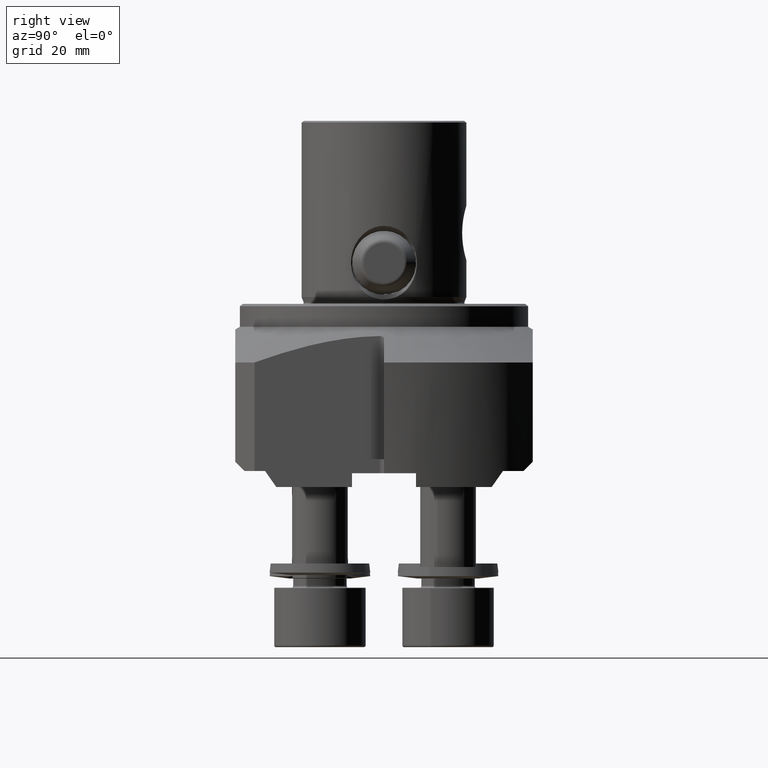
[diagram: clean part render]
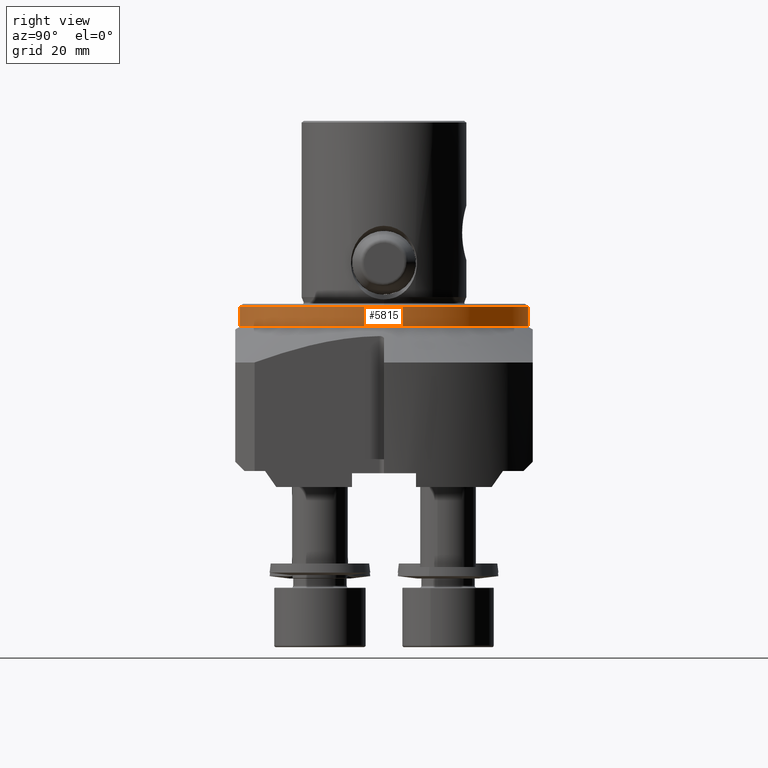
[diagram: same view with one face highlighted and labeled with its STEP entity id]
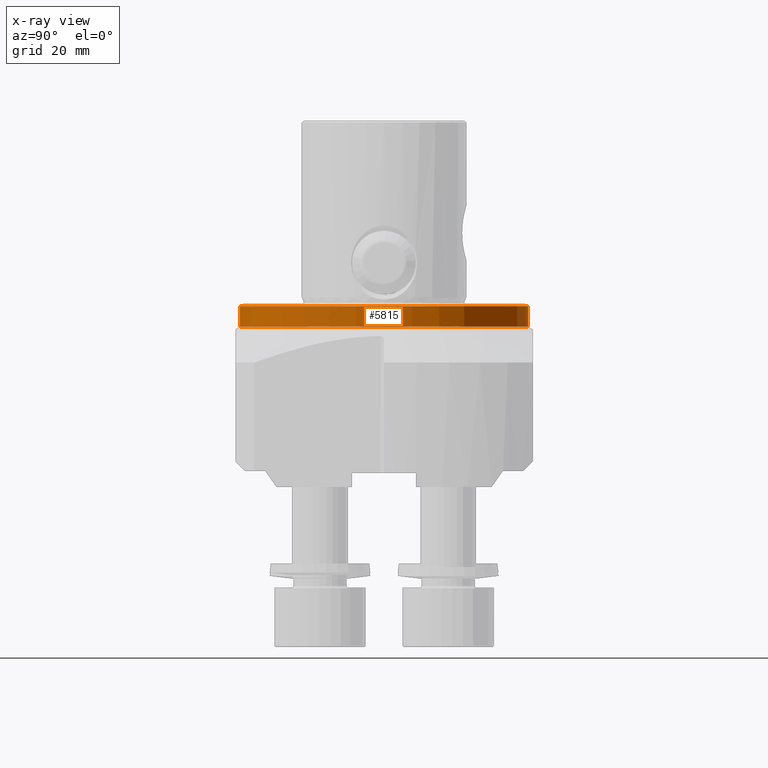
[diagram: x-ray of the same camera — body ghosted, the highlighted face saturated]
A machine part, right view. The second image highlights one B-rep face of the part: STEP entity #5815.
The next image is the same camera in x-ray: the body ghosted, the highlighted face saturated — about 0% of this face is hidden behind the body in this view.
In plain terms, the highlighted cylindrical surface (partial cylindrical patch) has radius 31.5 mm, axis along (-0, -0, 1).
Its self-contained STEP definition (entity closure, byte-faithful):
#2923=VERTEX_POINT('NONE',#7142);
#2971=VERTEX_POINT('NONE',#7199);
#3171=VERTEX_POINT('NONE',#7419);
#3493=EDGE_CURVE('NONE',#2923,#5423,#7778,.T.);
#4583=EDGE_CURVE('NONE',#2971,#2923,#9009,.T.);
#4857=EDGE_CURVE('NONE',#3171,#5315,#9311,.T.);
#5045=EDGE_CURVE('NONE',#3171,#2971,#9524,.T.);
#5315=VERTEX_POINT('NONE',#9828);
#5423=VERTEX_POINT('NONE',#9953);
#5815=ADVANCED_FACE('NONE',(#10391),#10392,.T.);
#6085=EDGE_CURVE('NONE',#5315,#5423,#10697,.T.);
#7142=CARTESIAN_POINT('',(31.5,-7.11521905847126E-014,-0.49999999999996));
#7199=CARTESIAN_POINT('',(-3.85751001454049E-015,-31.5,-0.49999999999996));
#7419=CARTESIAN_POINT('',(-3.85751001454049E-015,-31.5,-5.0));
#7778=CIRCLE('',#13117,31.5);
#9009=CIRCLE('',#14943,31.5);
#9311=CIRCLE('',#15468,31.5);
#9524=LINE('',#15796,#15797);
#9828=CARTESIAN_POINT('',(0.0,31.5,-5.0));
#9953=CARTESIAN_POINT('',(0.0,31.5,-0.49999999999996));
#10391=FACE_OUTER_BOUND('',#17164,.T.);
#10392=CYLINDRICAL_SURFACE('',#17165,31.5);
#10697=LINE('',#17655,#17656);
#13117=AXIS2_PLACEMENT_3D('',#19748,#19749,#19750);
#14943=AXIS2_PLACEMENT_3D('',#21349,#21350,#21351);
#15468=AXIS2_PLACEMENT_3D('',#21717,#21718,#21719);
#15796=CARTESIAN_POINT('',(-3.85751001454049E-015,-31.5,43.0421655114472));
#15797=VECTOR('',#21997,1000.0);
#17164=EDGE_LOOP('',(#23075,#23076,#23077,#23078,#23079));
#17165=AXIS2_PLACEMENT_3D('',#23080,#23081,#23082);
#17655=CARTESIAN_POINT('',(0.0,31.5,43.0421655114472));
#17656=VECTOR('',#23498,1000.0);
#19748=CARTESIAN_POINT('',(0.0,0.0,-0.49999999999996));
#19749=DIRECTION('',(0.0,0.0,1.0));
#19750=DIRECTION('',(0.0,-1.0,0.0));
#21349=CARTESIAN_POINT('',(0.0,0.0,-0.49999999999996));
#21350=DIRECTION('',(0.0,0.0,1.0));
#21351=DIRECTION('',(0.0,-1.0,0.0));
#21717=CARTESIAN_POINT('',(0.0,0.0,-5.0));
#21718=DIRECTION('',(0.0,-0.0,1.0));
#21719=DIRECTION('',(0.0,1.0,0.0));
#21997=DIRECTION('',(0.0,0.0,1.0));
#23075=ORIENTED_EDGE('',*,*,#5045,.F.);
#23076=ORIENTED_EDGE('',*,*,#4857,.T.);
#23077=ORIENTED_EDGE('',*,*,#6085,.T.);
#23078=ORIENTED_EDGE('',*,*,#3493,.F.);
#23079=ORIENTED_EDGE('',*,*,#4583,.F.);
#23080=CARTESIAN_POINT('',(0.0,0.0,43.0421655114472));
#23081=DIRECTION('',(-0.0,-0.0,1.0));
#23082=DIRECTION('',(0.0,1.0,0.0));
#23498=DIRECTION('',(0.0,0.0,1.0));